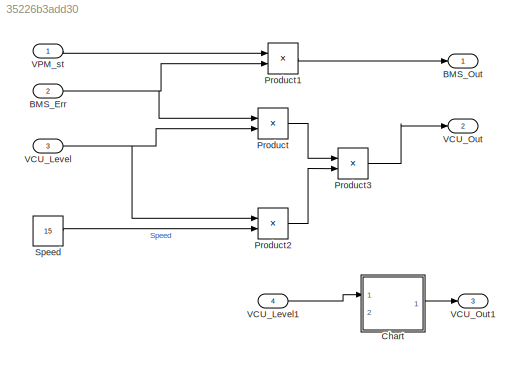
MODEL slx_35226b3add30
KIND model
CONFIG AbsTol = auto
CONFIG EnableMultiTasking = off
CONFIG FixedStep = auto
CONFIG MaxStep = auto
CONFIG MinStep = auto
CONFIG RelTol = 1e-3
CONFIG SampleTimeConstraint = Unconstrained
CONFIG Solver = VariableStepAuto
CONFIG SolverName = VariableStepAuto
CONFIG StartTime = 0.0
CONFIG StopTime = 10.0
BLOCK [Inport] BMS_Err
  IconDisplay = Port number
  Port = 2
BLOCK [Outport] BMS_Out
  IconDisplay = Port number
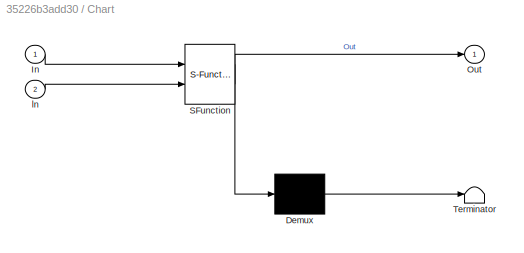
BLOCK [SubSystem] Chart
  ErrorFcn = Stateflow.Translate.translate
  PermitHierarchicalResolution = ExplicitOnly
  Ports = [2, 1]
  RequestExecContextInheritance = off
  SFBlockType = Chart
  SystemSampleTime = 0.01
  TreatAsAtomicUnit = on
BLOCK [Demux] Chart/ Demux 
  Outputs = 1
  Ports = [1, 1]
BLOCK [S-Function] Chart/ SFunction 
  EnableBusSupport = on
  FunctionName = sf_sfun
  PortCounts = [2 2]
  Ports = [2, 2]
  SFcnIsStateOwnerBlock = off
  SFunctionDeploymentMode = off
  Tag = Stateflow S-Function FindPort 3
BLOCK [Terminator] Chart/ Terminator 
BLOCK [Inport] Chart/In
  IconDisplay = Port number
BLOCK [Outport] Chart/Out
  IconDisplay = Port number
BLOCK [Inport] Chart/ln
  IconDisplay = Port number
  Port = 2
BLOCK [Product] Product
  InputSameDT = off
  OutDataTypeStr = Inherit: Inherit via internal rule
  Ports = [2, 1]
  RndMeth = Floor
  SaturateOnIntegerOverflow = off
BLOCK [Product] Product1
  InputSameDT = off
  OutDataTypeStr = Inherit: Inherit via internal rule
  Ports = [2, 1]
  RndMeth = Floor
  SaturateOnIntegerOverflow = off
BLOCK [Product] Product2
  InputSameDT = off
  OutDataTypeStr = Inherit: Inherit via internal rule
  Ports = [2, 1]
  RndMeth = Floor
  SaturateOnIntegerOverflow = off
BLOCK [Product] Product3
  InputSameDT = off
  OutDataTypeStr = Inherit: Inherit via internal rule
  Ports = [2, 1]
  RndMeth = Floor
  SaturateOnIntegerOverflow = off
BLOCK [Constant] Speed
  Value = 15
BLOCK [Inport] VCU_Level
  IconDisplay = Port number
  Port = 3
BLOCK [Inport] VCU_Level1
  IconDisplay = Port number
  Port = 4
BLOCK [Outport] VCU_Out
  IconDisplay = Port number
  Port = 2
BLOCK [Outport] VCU_Out1
  IconDisplay = Port number
  Port = 3
BLOCK [Inport] VPM_st
  IconDisplay = Port number
NET BMS_Err:1 -> Product1:2, Product:1
LINE Chart:1 -> VCU_Out1:1
LINE Product1:1 -> BMS_Out:1
LINE Product2:1 -> Product3:2
LINE Product3:1 -> VCU_Out:1
LINE Product:1 -> Product3:1
LINE Speed:1 -> Product2:2
LINE VCU_Level1:1 -> Chart:1
NET VCU_Level:1 -> Product2:1, Product:2
LINE VPM_st:1 -> Product1:1
note: NET lines group one-source signal fan-out (src -> all destinations, sorted); 1:1 wires keep LINE
CHART Chart states=1 transitions=1
  STATE_LABEL 'START\nen:Out = ln;'
